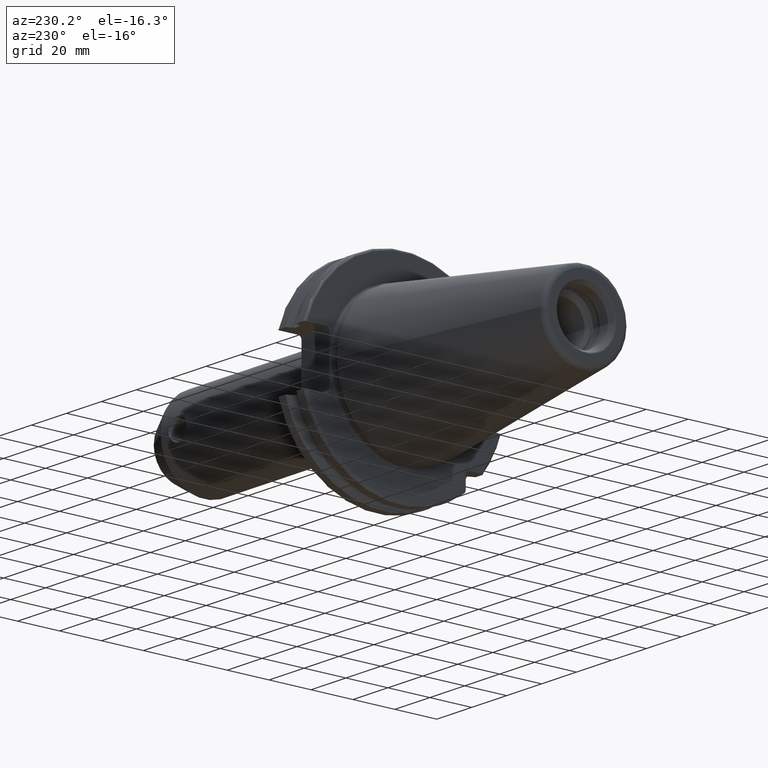
[diagram: clean part render]
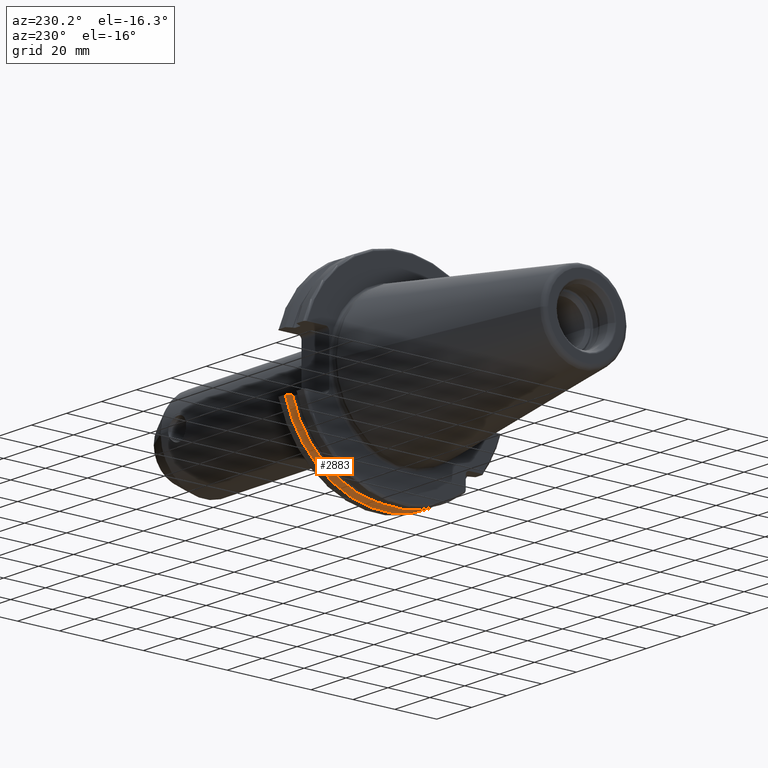
[diagram: same view with one face highlighted and labeled with its STEP entity id]
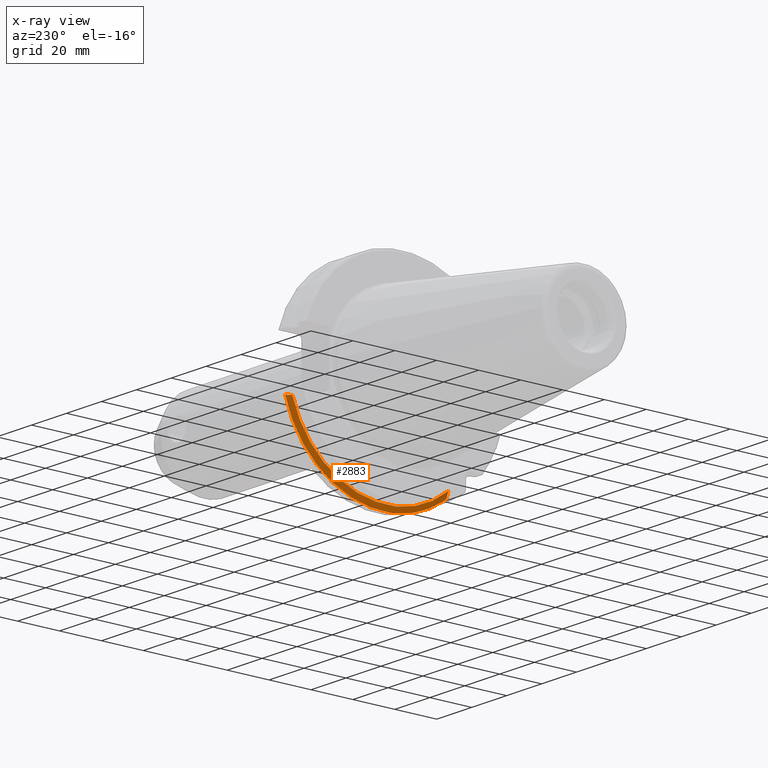
[diagram: x-ray of the same camera — body ghosted, the highlighted face saturated]
A machine part, auxiliary view. The second image highlights one B-rep face of the part: STEP entity #2883.
The next image is the same camera in x-ray: the body ghosted, the highlighted face saturated — about 0% of this face is hidden behind the body in this view.
In plain terms, the highlighted conical surface has half-angle 60 deg.
Its self-contained STEP definition (entity closure, byte-faithful):
#605=CARTESIAN_POINT('',(1.441537838583E1,0.E0,0.E0));
#606=DIRECTION('',(1.E0,0.E0,0.E0));
#607=DIRECTION('',(0.E0,-6.124647345473E-1,-7.904979120376E-1));
#608=AXIS2_PLACEMENT_3D('',#605,#606,#607);
#1160=CARTESIAN_POINT('',(1.30875E1,4.460981716077E1,-1.29E1));
#1161=CARTESIAN_POINT('',(1.323171622645E1,4.486984125009E1,-1.29E1));
#1162=CARTESIAN_POINT('',(1.352236645045E1,4.539353719098E1,-1.29E1));
#1163=CARTESIAN_POINT('',(1.396495664446E1,4.618996220278E1,-1.29E1));
#1164=CARTESIAN_POINT('',(1.426449561388E1,4.672829507383E1,-1.29E1));
#1165=CARTESIAN_POINT('',(1.441537838583E1,4.699929686974E1,-1.29E1));
#1167=CARTESIAN_POINT('',(1.30875E1,0.E0,0.E0));
#1168=DIRECTION('',(-1.E0,0.E0,0.E0));
#1169=DIRECTION('',(0.E0,9.606411165078E-1,-2.777924499957E-1));
#1170=AXIS2_PLACEMENT_3D('',#1167,#1168,#1169);
#1172=CARTESIAN_POINT('',(1.30875E1,-2.985E1,-3.557278857662E1));
#1173=CARTESIAN_POINT('',(1.322720354061E1,-2.985E1,-3.588866659244E1));
#1174=CARTESIAN_POINT('',(1.351179500938E1,-2.985E1,-3.652866450573E1));
#1175=CARTESIAN_POINT('',(1.395393296765E1,-2.985E1,-3.751242476101E1));
#1176=CARTESIAN_POINT('',(1.425975326859E1,-2.985E1,-3.818590359837E1));
#1177=CARTESIAN_POINT('',(1.441537838583E1,-2.985E1,-3.852689198793E1));
#1518=CARTESIAN_POINT('',(1.30875E1,4.460981716077E1,-1.29E1));
#1520=VERTEX_POINT('',#1518);
#1538=VERTEX_POINT('',#1165);
#1579=CARTESIAN_POINT('',(1.30875E1,-2.985E1,-3.557278857662E1));
#1580=VERTEX_POINT('',#1579);
#1687=VERTEX_POINT('',#1177);
#2872=CARTESIAN_POINT('',(1.375143919291E1,0.E0,0.E0));
#2873=DIRECTION('',(1.E0,0.E0,0.E0));
#2874=DIRECTION('',(0.E0,-1.E0,0.E0));
#2875=AXIS2_PLACEMENT_3D('',#2872,#2873,#2874);
#2876=CONICAL_SURFACE('',#2875,4.758752358474E1,6.E1);
#2877=ORIENTED_EDGE('',*,*,#2187,.F.);
#2878=ORIENTED_EDGE('',*,*,#2739,.T.);
#2879=ORIENTED_EDGE('',*,*,#2466,.T.);
#2880=ORIENTED_EDGE('',*,*,#2393,.T.);
#2881=EDGE_LOOP('',(#2877,#2878,#2879,#2880));
#2882=FACE_OUTER_BOUND('',#2881,.F.);
#2883=ADVANCED_FACE('',(#2882),#2876,.T.);
#609=CIRCLE('',#608,4.87375E1);
#1166=B_SPLINE_CURVE_WITH_KNOTS('',3,(#1160,#1161,#1162,#1163,#1164,#1165),
.UNSPECIFIED.,.F.,.F.,(4,1,1,4),(0.E0,3.333333333333E-1,6.666666666667E-1,1.E0),
.UNSPECIFIED.);
#1171=CIRCLE('',#1170,4.643754716948E1);
#1178=B_SPLINE_CURVE_WITH_KNOTS('',3,(#1172,#1173,#1174,#1175,#1176,#1177),
.UNSPECIFIED.,.F.,.F.,(4,1,1,4),(0.E0,3.333333333333E-1,6.666666666667E-1,1.E0),
.UNSPECIFIED.);
#2187=EDGE_CURVE('',#1520,#1538,#1166,.T.);
#2393=EDGE_CURVE('',#1687,#1538,#609,.T.);
#2466=EDGE_CURVE('',#1580,#1687,#1178,.T.);
#2739=EDGE_CURVE('',#1520,#1580,#1171,.T.);